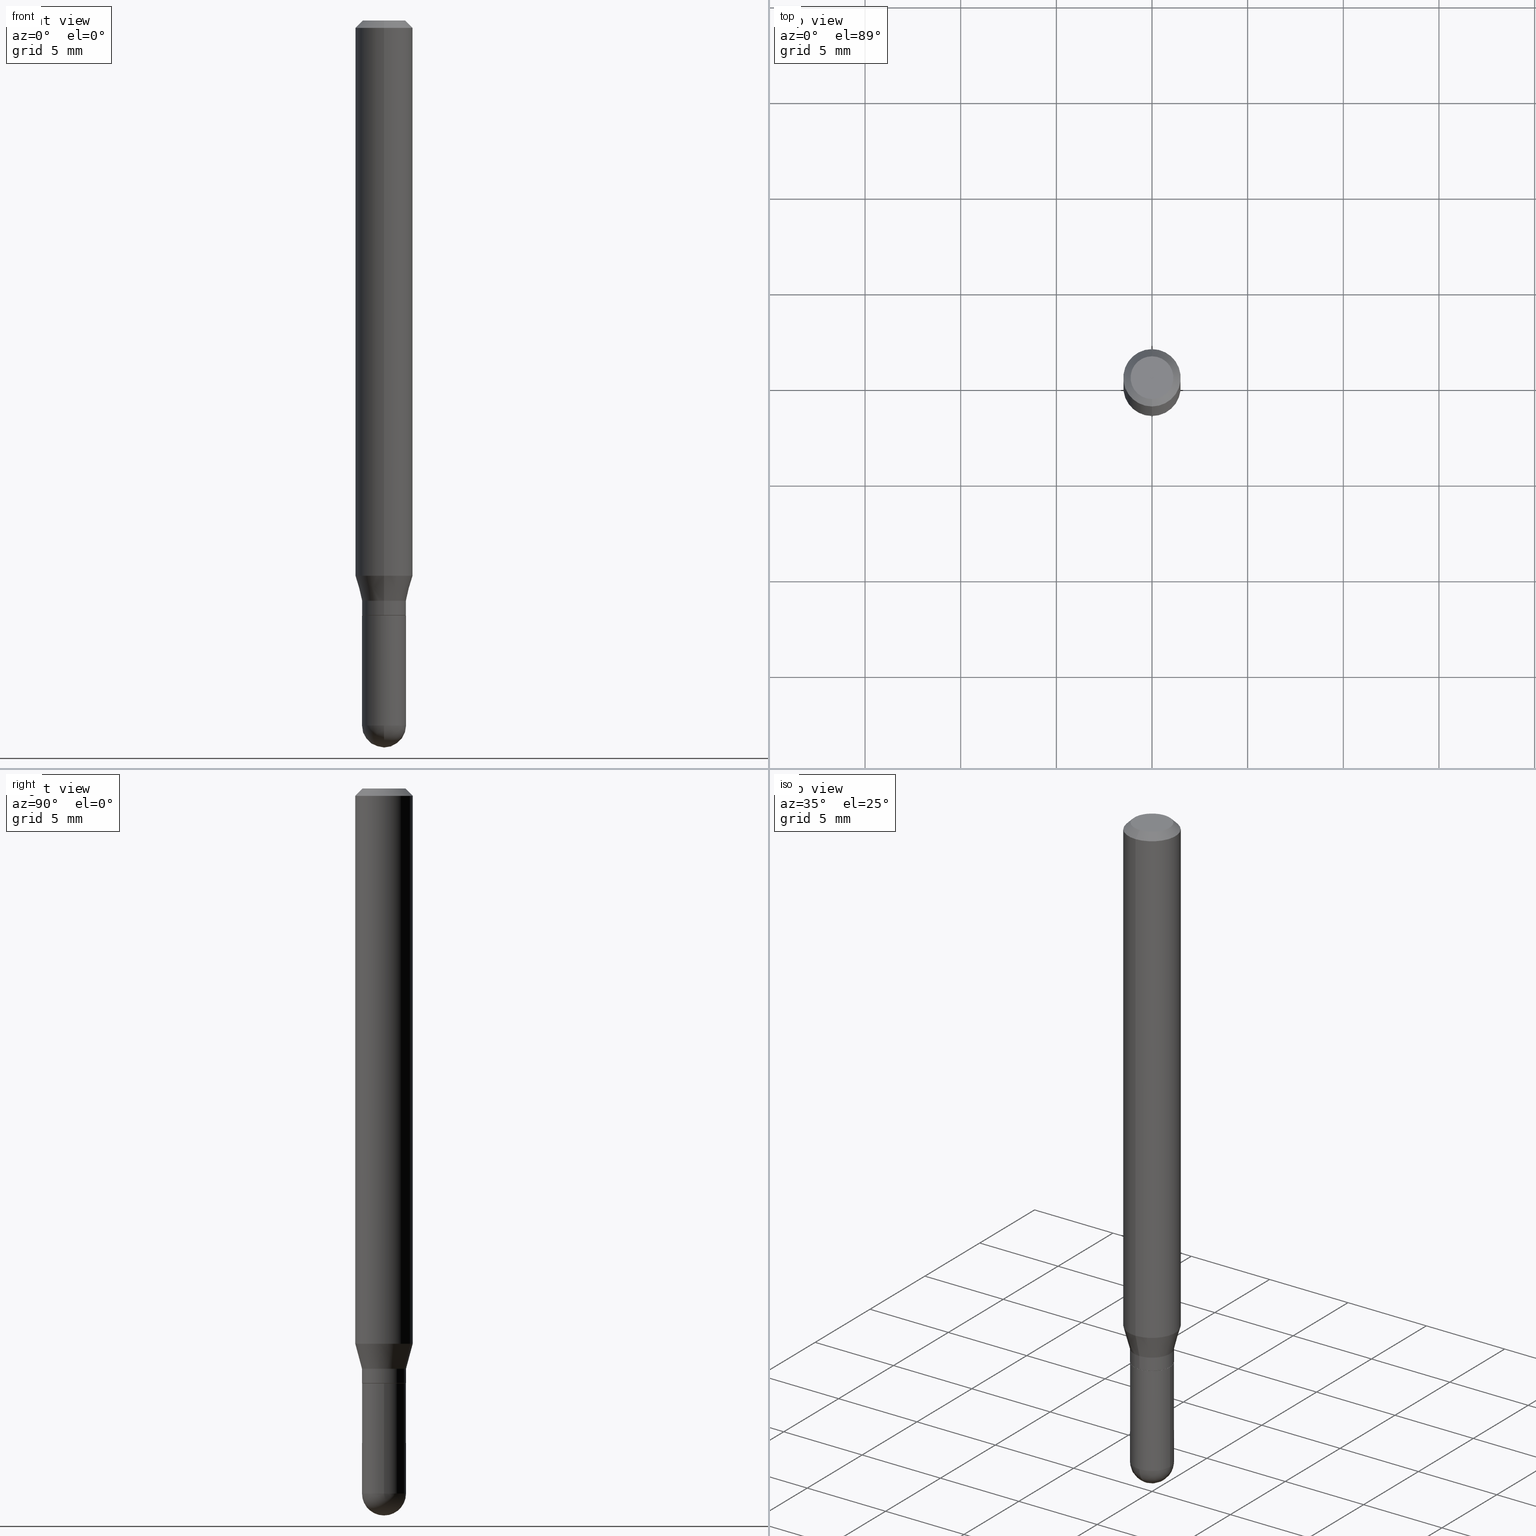
[diagram: canonical four-view strip — front | top / right | iso, engineering-drawing reading convention]
A machine part, canonical four-view strip (front | top / right | iso — engineering-drawing reading convention). The complete STEP part file that produces these views, byte-faithful:
ISO-10303-21;
HEADER;
FILE_DESCRIPTION (( 'STEP AP203' ),
    '1' );
FILE_NAME ('02972.STEP',
    '2024-03-07T22:12:46',
    ( '' ),
    ( '' ),
    'SwSTEP 2.0',
    'SolidWorks 2023',
    '' );
FILE_SCHEMA (( 'CONFIG_CONTROL_DESIGN' ));
ENDSEC;

DATA;
#1 = EDGE_CURVE ( 'NONE', #253, #218, #190, .T. ) ;
#2 = DIRECTION ( 'NONE',  ( -2.445418673968279448E-29, 3.491553131031033645E-15, 1.000000000000000000 ) ) ;
#3 = CIRCLE ( 'NONE', #499, 0.04529999999999997223 ) ;
#4 = DIRECTION ( 'NONE',  ( 1.000000000000000000, -7.105427357601001070E-15, 4.926315508542082329E-29 ) ) ;
#5 = LINE ( 'NONE', #264, #470 ) ;
#6 = EDGE_CURVE ( 'NONE', #132, #503, #116, .T. ) ;
#7 = DIRECTION ( 'NONE',  ( 1.000000000000000000, -6.982962677686271444E-15, 0.000000000000000000 ) ) ;
#8 = CARTESIAN_POINT ( 'NONE',  ( 2.992947915069776722E-29, -4.273311877068882063E-15, -1.223899999999999988 ) ) ;
#9 = FACE_OUTER_BOUND ( 'NONE', #507, .T. ) ;
#10 = DIMENSIONAL_EXPONENTS ( 1.000000000000000000, 0.000000000000000000, 0.000000000000000000, 0.000000000000000000, 0.000000000000000000, 0.000000000000000000, 0.000000000000000000 ) ;
#11 = DIRECTION ( 'NONE',  ( -2.445468806185136597E-29, 3.491481338843145583E-15, 1.000000000000000000 ) ) ;
#12 = DIRECTION ( 'NONE',  ( -2.445468806185136597E-29, 3.491481338843145583E-15, 1.000000000000000000 ) ) ;
#13 = AXIS2_PLACEMENT_3D ( 'NONE', #497, #60, #392 ) ;
#14 = CARTESIAN_POINT ( 'NONE',  ( 3.668128010952441278E-31, -5.237329696546582811E-17, -0.01500000000000009139 ) ) ;
#15 = CARTESIAN_POINT ( 'NONE',  ( -4.123439461173736383E-16, -0.05905000000000005383, -0.01499999999999988495 ) ) ;
#16 = CARTESIAN_POINT ( 'NONE',  ( 0.000000000000000000, 0.000000000000000000, 0.000000000000000000 ) ) ;
#17 = EDGE_CURVE ( 'NONE', #218, #503, #509, .T. ) ;
#18 = PERSON_AND_ORGANIZATION ( #61, #500 ) ;
#19 = ORIENTED_EDGE ( 'NONE', *, *, #141, .F. ) ;
#20 = CARTESIAN_POINT ( 'NONE',  ( 3.707256723828610594E-16, 0.04529999999999589216, -1.194100000000000161 ) ) ;
#21 = AXIS2_PLACEMENT_3D ( 'NONE', #486, #456, #247 ) ;
#22 = PERSON_AND_ORGANIZATION_ROLE ( 'classification_officer' ) ;
#23 = APPLICATION_PROTOCOL_DEFINITION ( 'international standard', 'config_control_design', 1994, #152 ) ;
#24 = CC_DESIGN_PERSON_AND_ORGANIZATION_ASSIGNMENT ( #354, #211, ( #467 ) ) ;
#25 = VERTEX_POINT ( 'NONE', #118 ) ;
#26 = DIRECTION ( 'NONE',  ( 1.839019923739603865E-15, 0.2588190451025254579, 0.9659258262890669799 ) ) ;
#27 = DIRECTION ( 'NONE',  ( -6.982962677686265133E-15, -1.000000000000000000, 3.491553131031033645E-15 ) ) ;
#28 = VECTOR ( 'NONE', #162, 39.37007874015748143 ) ;
#29 = EDGE_CURVE ( 'NONE', #336, #231, #444, .T. ) ;
#30 = CONICAL_SURFACE ( 'NONE', #419, 0.05904999999999999832, 0.7853981633974483900 ) ;
#31 = LINE ( 'NONE', #401, #202 ) ;
#32 = ORIENTED_EDGE ( 'NONE', *, *, #510, .F. ) ;
#33 = ORIENTED_EDGE ( 'NONE', *, *, #348, .F. ) ;
#34 = ORIENTED_EDGE ( 'NONE', *, *, #487, .T. ) ;
#35 = PLANE ( 'NONE',  #269 ) ;
#36 = ORIENTED_EDGE ( 'NONE', *, *, #510, .T. ) ;
#37 = ORIENTED_EDGE ( 'NONE', *, *, #6, .T. ) ;
#38 = CIRCLE ( 'NONE', #81, 0.04479999999999999954 ) ;
#39 = CARTESIAN_POINT ( 'NONE',  ( 0.000000000000000000, 0.000000000000000000, 0.000000000000000000 ) ) ;
#40 = ADVANCED_FACE ( 'NONE', ( #203 ), #327, .T. ) ;
#41 = ORIENTED_EDGE ( 'NONE', *, *, #55, .T. ) ;
#42 = ORIENTED_EDGE ( 'NONE', *, *, #386, .F. ) ;
#43 = CARTESIAN_POINT ( 'NONE',  ( 2.994170624406760969E-29, -4.275057653634397483E-15, -1.224399999999999933 ) ) ;
#44 = DIRECTION ( 'NONE',  ( -2.445418673968279448E-29, 3.491553131031033645E-15, 1.000000000000000000 ) ) ;
#45 = ORIENTED_EDGE ( 'NONE', *, *, #458, .F. ) ;
#46 = EDGE_LOOP ( 'NONE', ( #76, #244, #452, #228 ) ) ;
#47 = CARTESIAN_POINT ( 'NONE',  ( -3.163282092991584508E-16, -0.04530000000000435761, -1.223899999999999766 ) ) ;
#48 = EDGE_CURVE ( 'NONE', #218, #253, #294, .T. ) ;
#49 = ORIENTED_EDGE ( 'NONE', *, *, #316, .T. ) ;
#50 = CIRCLE ( 'NONE', #281, 0.05904999999999999832 ) ;
#51 = PRODUCT_RELATED_PRODUCT_CATEGORY ( 'detail', '', ( #355 ) ) ;
#52 = ORIENTED_EDGE ( 'NONE', *, *, #48, .T. ) ;
#53 = LINE ( 'NONE', #85, #379 ) ;
#54 = CARTESIAN_POINT ( 'NONE',  ( -3.163282092991523864E-16, -0.04530000000000506538, -1.450799999999999423 ) ) ;
#55 = EDGE_CURVE ( 'NONE', #231, #437, #241, .T. ) ;
#56 = DATE_TIME_ROLE ( 'creation_date' ) ;
#57 = CONICAL_SURFACE ( 'NONE', #359, 0.04530000000000006244, 0.2617993877991508511 ) ;
#58 = EDGE_LOOP ( 'NONE', ( #315, #34, #185, #283 ) ) ;
#59 = AXIS2_PLACEMENT_3D ( 'NONE', #8, #172, #133 ) ;
#60 = DIRECTION ( 'NONE',  ( -2.445418673968279448E-29, 3.491553131031033645E-15, 1.000000000000000000 ) ) ;
#61 = PERSON ( 'UNSPECIFIED', 'UNSPECIFIED', 'UNSPECIFIED', ('UNSPECIFIED'), ('UNSPECIFIED'), ('UNSPECIFIED') ) ;
#62 = PRODUCT_DEFINITION_SHAPE ( 'NONE', 'NONE',  #467 ) ;
#63 = ORIENTED_EDGE ( 'NONE', *, *, #316, .F. ) ;
#64 = EDGE_CURVE ( 'NONE', #231, #218, #382, .T. ) ;
#65 = AXIS2_PLACEMENT_3D ( 'NONE', #384, #12, #7 ) ;
#66 = CC_DESIGN_PERSON_AND_ORGANIZATION_ASSIGNMENT ( #18, #502, ( #330 ) ) ;
#67 = AXIS2_PLACEMENT_3D ( 'NONE', #14, #426, #233 ) ;
#68 = CC_DESIGN_SECURITY_CLASSIFICATION ( #237, ( #330 ) ) ;
#69 = EDGE_LOOP ( 'NONE', ( #97, #262, #436, #19, #307 ) ) ;
#70 = CARTESIAN_POINT ( 'NONE',  ( 3.218758592993607350E-16, 0.04529999999999492072, -1.450800000000000090 ) ) ;
#71 = PERSON_AND_ORGANIZATION_ROLE ( 'design_owner' ) ;
#72 = DIRECTION ( 'NONE',  ( -2.445418673968279448E-29, 3.491553131031033645E-15, 1.000000000000000000 ) ) ;
#73 =( NAMED_UNIT ( * ) PLANE_ANGLE_UNIT ( ) SI_UNIT ( $, .RADIAN. ) );
#74 = CARTESIAN_POINT ( 'NONE',  ( 0.000000000000000000, 0.000000000000000000, 0.000000000000000000 ) ) ;
#75 = LOCAL_TIME ( 17, 12, 46.00000000000000000, #404 ) ;
#76 = ORIENTED_EDGE ( 'NONE', *, *, #207, .F. ) ;
#77 = APPROVAL_ROLE ( '' ) ;
#78 = LINE ( 'NONE', #399, #242 ) ;
#79 = DIRECTION ( 'NONE',  ( -1.000000000000000000, 6.982962677686265922E-15, -4.883557194083112340E-29 ) ) ;
#80 = CARTESIAN_POINT ( 'NONE',  ( 2.994170624406760969E-29, -4.275057653634397483E-15, -1.224399999999999933 ) ) ;
#81 = AXIS2_PLACEMENT_3D ( 'NONE', #292, #2, #337 ) ;
#82 = CALENDAR_DATE ( 2024, 7, 3 ) ;
#83 = FACE_OUTER_BOUND ( 'NONE', #365, .T. ) ;
#84 = CARTESIAN_POINT ( 'NONE',  ( 3.599717260347271507E-16, 0.04404999999999999888, -2.454645658922200893E-16 ) ) ;
#85 = CARTESIAN_POINT ( 'NONE',  ( 3.183231456205547581E-16, 0.04479999999999572519, -1.224400000000000155 ) ) ;
#86 = DIRECTION ( 'NONE',  ( 1.000000000000000000, 0.000000000000000000, 0.000000000000000000 ) ) ;
#87 = EDGE_CURVE ( 'NONE', #417, #389, #123, .T. ) ;
#88 = CARTESIAN_POINT ( 'NONE',  ( 0.04530000000000000693, -4.986533648135779220E-15, -1.450799999999999645 ) ) ;
#89 = DATE_AND_TIME ( #442, #75 ) ;
#90 = CC_DESIGN_DATE_AND_TIME_ASSIGNMENT ( #102, #338, ( #237 ) ) ;
#91 = COORDINATED_UNIVERSAL_TIME_OFFSET ( 5, 0, .BEHIND. ) ;
#92 = AXIS2_PLACEMENT_3D ( 'NONE', #216, #219, #387 ) ;
#93 = EDGE_LOOP ( 'NONE', ( #194, #364, #254, #473 ) ) ;
#94 = CIRCLE ( 'NONE', #312, 0.04530000000000006244 ) ;
#95 =( LENGTH_UNIT ( ) NAMED_UNIT ( * ) SI_UNIT ( $, .METRE. ) );
#96 = ORIENTED_EDGE ( 'NONE', *, *, #288, .F. ) ;
#97 = ORIENTED_EDGE ( 'NONE', *, *, #448, .T. ) ;
#98 = CARTESIAN_POINT ( 'NONE',  ( 2.994170624406760969E-29, -4.275057653634397483E-15, -1.224399999999999933 ) ) ;
#99 = EDGE_CURVE ( 'NONE', #376, #459, #154, .T. ) ;
#100 = ORIENTED_EDGE ( 'NONE', *, *, #174, .T. ) ;
#101 = AXIS2_PLACEMENT_3D ( 'NONE', #201, #224, #293 ) ;
#102 = DATE_AND_TIME ( #319, #360 ) ;
#103 = AXIS2_PLACEMENT_3D ( 'NONE', #335, #511, #416 ) ;
#104 = PERSON_AND_ORGANIZATION_ROLE ( 'design_supplier' ) ;
#105 = ORIENTED_EDGE ( 'NONE', *, *, #181, .T. ) ;
#106 = CARTESIAN_POINT ( 'NONE',  ( 2.241511117468325318E-45, -3.200415226950590943E-31, -9.166165047030312473E-17 ) ) ;
#107 = APPLICATION_CONTEXT ( 'configuration controlled 3d designs of mechanical parts and assemblies' ) ;
#108 = ADVANCED_FACE ( 'NONE', ( #266 ), #111, .T. ) ;
#109 = SECURITY_CLASSIFICATION_LEVEL ( 'unclassified' ) ;
#110 = ORIENTED_EDGE ( 'NONE', *, *, #348, .T. ) ;
#111 = CONICAL_SURFACE ( 'NONE', #410, 0.05904999999999999832, 0.7853981633974483900 ) ;
#112 = CIRCLE ( 'NONE', #134, 0.04530000000000000693 ) ;
#113 = ADVANCED_FACE ( 'NONE', ( #83 ), #57, .T. ) ;
#114 = DIRECTION ( 'NONE',  ( 2.438088387897960049E-29, -3.491481338843145188E-15, -1.000000000000000000 ) ) ;
#115 = AXIS2_PLACEMENT_3D ( 'NONE', #453, #169, #256 ) ;
#116 = LINE ( 'NONE', #245, #259 ) ;
#117 = DIRECTION ( 'NONE',  ( -2.445468806185136597E-29, 3.491481338843145583E-15, 1.000000000000000000 ) ) ;
#118 = CARTESIAN_POINT ( 'NONE',  ( -3.128367279603147534E-16, -0.04480000000000427390, -1.224399999999999711 ) ) ;
#119 = DIRECTION ( 'NONE',  ( 2.445418673968279168E-29, -3.491553131031033645E-15, -1.000000000000000000 ) ) ;
#120 = DIRECTION ( 'NONE',  ( -2.445468806185136597E-29, 3.491481338843145583E-15, 1.000000000000000000 ) ) ;
#121 = EDGE_LOOP ( 'NONE', ( #408, #414, #32, #477 ) ) ;
#122 = CARTESIAN_POINT ( 'NONE',  ( -0.04530000000000000693, 3.218758592993254334E-16, -2.228277595885472564E-30 ) ) ;
#123 = CIRCLE ( 'NONE', #65, 0.04529999999999999999 ) ;
#124 = EDGE_CURVE ( 'NONE', #279, #25, #248, .T. ) ;
#125 = LOCAL_TIME ( 17, 12, 46.00000000000000000, #465 ) ;
#126 = CALENDAR_DATE ( 2024, 7, 3 ) ;
#127 = DIRECTION ( 'NONE',  ( -2.445468806185136597E-29, 3.491481338843145583E-15, 1.000000000000000000 ) ) ;
#128 = CARTESIAN_POINT ( 'NONE',  ( 2.920074438585522124E-29, -4.169263593764157462E-15, -1.194099999999999939 ) ) ;
#129 = ORIENTED_EDGE ( 'NONE', *, *, #323, .F. ) ;
#130 = DIRECTION ( 'NONE',  ( -6.982962677686265133E-15, -1.000000000000000000, 3.491553131031033645E-15 ) ) ;
#131 = DIRECTION ( 'NONE',  ( -2.445418673968279448E-29, 3.491553131031033645E-15, 1.000000000000000000 ) ) ;
#132 = VERTEX_POINT ( 'NONE', #481 ) ;
#133 = DIRECTION ( 'NONE',  ( -6.982962677686265133E-15, -1.000000000000000000, 3.015284761218829434E-15 ) ) ;
#134 = AXIS2_PLACEMENT_3D ( 'NONE', #489, #285, #257 ) ;
#135 = FACE_OUTER_BOUND ( 'NONE', #46, .T. ) ;
#136 = DIRECTION ( 'NONE',  ( -4.937700262164674260E-15, -0.7071067811865632269, 0.7071067811865319186 ) ) ;
#137 = DIRECTION ( 'NONE',  ( -2.445468806185136597E-29, 3.491481338843145583E-15, 1.000000000000000000 ) ) ;
#138 = ORIENTED_EDGE ( 'NONE', *, *, #448, .F. ) ;
#139 = ORIENTED_EDGE ( 'NONE', *, *, #288, .T. ) ;
#140 = PERSON_AND_ORGANIZATION ( #61, #500 ) ;
#141 = EDGE_CURVE ( 'NONE', #146, #389, #167, .T. ) ;
#142 = AXIS2_PLACEMENT_3D ( 'NONE', #321, #119, #278 ) ;
#143 = ORIENTED_EDGE ( 'NONE', *, *, #174, .F. ) ;
#144 = EDGE_CURVE ( 'NONE', #146, #459, #275, .T. ) ;
#145 = APPROVAL_DATE_TIME ( #89, #340 ) ;
#146 = VERTEX_POINT ( 'NONE', #88 ) ;
#147 = PLANE ( 'NONE',  #142 ) ;
#148 = AXIS2_PLACEMENT_3D ( 'NONE', #39, #484, #130 ) ;
#149 = DIRECTION ( 'NONE',  ( 2.445418673968279448E-29, -3.491553131031033645E-15, -1.000000000000000000 ) ) ;
#150 = PERSON_AND_ORGANIZATION ( #61, #500 ) ;
#151 = ADVANCED_FACE ( 'NONE', ( #441 ), #406, .T. ) ;
#152 = APPLICATION_CONTEXT ( 'configuration controlled 3d designs of mechanical parts and assemblies' ) ;
#153 = CYLINDRICAL_SURFACE ( 'NONE', #434, 0.04530000000000006244 ) ;
#154 = CIRCLE ( 'NONE', #455, 0.04529999999999997223 ) ;
#155 = VECTOR ( 'NONE', #295, 39.37007874015748143 ) ;
#156 = EDGE_LOOP ( 'NONE', ( #52, #49, #427, #461 ) ) ;
#157 = CARTESIAN_POINT ( 'NONE',  ( 4.195754854663672017E-16, 0.05904999999999994975, -0.01500000000000029955 ) ) ;
#158 = CARTESIAN_POINT ( 'NONE',  ( 3.200995024599552074E-16, 0.04479999999999572519, -1.224400000000000155 ) ) ;
#159 = CARTESIAN_POINT ( 'NONE',  ( 3.544012240723413228E-29, -5.070988776393773069E-15, -1.450800000000000090 ) ) ;
#160 = DIRECTION ( 'NONE',  ( -6.982962677686266711E-15, -1.000000000000000000, 0.000000000000000000 ) ) ;
#161 = SPHERICAL_SURFACE ( 'NONE', #423, 0.04529999999999997223 ) ;
#162 = DIRECTION ( 'NONE',  ( -2.445468806185136877E-29, 3.491481338843145188E-15, 1.000000000000000000 ) ) ;
#163 = CYLINDRICAL_SURFACE ( 'NONE', #411, 0.04530000000000000693 ) ;
#164 = AXIS2_PLACEMENT_3D ( 'NONE', #402, #117, #366 ) ;
#165 = ADVANCED_FACE ( 'NONE', ( #239 ), #153, .T. ) ;
#166 = CC_DESIGN_APPROVAL ( #188, ( #330 ) ) ;
#167 = LINE ( 'NONE', #339, #28 ) ;
#168 = CYLINDRICAL_SURFACE ( 'NONE', #505, 0.05904999999999999832 ) ;
#169 = DIRECTION ( 'NONE',  ( -2.445418673968279448E-29, 3.491553131031033645E-15, 1.000000000000000000 ) ) ;
#170 = APPROVAL_ROLE ( '' ) ;
#171 = DIRECTION ( 'NONE',  ( 6.982962677686265922E-15, 1.000000000000000000, -3.505890868245046092E-15 ) ) ;
#172 = DIRECTION ( 'NONE',  ( -2.445418673968279448E-29, 3.491553131031033645E-15, 1.000000000000000000 ) ) ;
#173 = DIRECTION ( 'NONE',  ( -2.445418673968279448E-29, 3.491553131031033645E-15, 1.000000000000000000 ) ) ;
#174 = EDGE_CURVE ( 'NONE', #189, #313, #236, .T. ) ;
#175 = CARTESIAN_POINT ( 'NONE',  ( 4.195754854663390985E-16, 0.05904999999999999832, -2.061762123873825338E-16 ) ) ;
#176 = AXIS2_PLACEMENT_3D ( 'NONE', #98, #495, #220 ) ;
#177 = AXIS2_PLACEMENT_3D ( 'NONE', #16, #180, #86 ) ;
#178 = PERSON_AND_ORGANIZATION ( #61, #500 ) ;
#179 = DIRECTION ( 'NONE',  ( 2.445418673968279448E-29, -3.491553131031033645E-15, -1.000000000000000000 ) ) ;
#180 = DIRECTION ( 'NONE',  ( 0.000000000000000000, 0.000000000000000000, 1.000000000000000000 ) ) ;
#181 = EDGE_CURVE ( 'NONE', #394, #325, #78, .T. ) ;
#182 = CC_DESIGN_PERSON_AND_ORGANIZATION_ASSIGNMENT ( #466, #104, ( #330 ) ) ;
#183 = CLOSED_SHELL ( 'NONE', ( #344, #438, #210, #324, #302 ) ) ;
#184 = VECTOR ( 'NONE', #347, 39.37007874015748143 ) ;
#185 = ORIENTED_EDGE ( 'NONE', *, *, #29, .T. ) ;
#186 = ORIENTED_EDGE ( 'NONE', *, *, #207, .T. ) ;
#187 = APPROVAL_DATE_TIME ( #234, #378 ) ;
#188 = APPROVAL ( #494, 'UNSPECIFIED' ) ;
#189 = VERTEX_POINT ( 'NONE', #246 ) ;
#190 = CIRCLE ( 'NONE', #428, 0.05904999999999999832 ) ;
#191 = AXIS2_PLACEMENT_3D ( 'NONE', #420, #127, #450 ) ;
#192 = FACE_OUTER_BOUND ( 'NONE', #311, .T. ) ;
#193 = AXIS2_PLACEMENT_3D ( 'NONE', #482, #249, #413 ) ;
#194 = ORIENTED_EDGE ( 'NONE', *, *, #260, .F. ) ;
#195 = DIRECTION ( 'NONE',  ( -6.982962677686265922E-15, -1.000000000000000000, 3.491553131031033645E-15 ) ) ;
#196 = ORIENTED_EDGE ( 'NONE', *, *, #124, .F. ) ;
#197 = ADVANCED_BREP_SHAPE_REPRESENTATION ( '02972', ( #508, #342, #177 ), #435 ) ;
#198 = CARTESIAN_POINT ( 'NONE',  ( 0.000000000000000000, 0.000000000000000000, 0.000000000000000000 ) ) ;
#199 = DIRECTION ( 'NONE',  ( -2.445418673968279448E-29, 3.491553131031033645E-15, 1.000000000000000000 ) ) ;
#200 = CARTESIAN_POINT ( 'NONE',  ( 3.163282092992178619E-16, 0.04529999999999572563, -1.224400000000000155 ) ) ;
#201 = CARTESIAN_POINT ( 'NONE',  ( 2.794586070951398077E-29, -3.990092105632066649E-15, -1.142784301395928459 ) ) ;
#202 = VECTOR ( 'NONE', #26, 39.37007874015748854 ) ;
#203 = FACE_OUTER_BOUND ( 'NONE', #121, .T. ) ;
#204 = APPROVAL_PERSON_ORGANIZATION ( #393, #340, #77 ) ;
#205 = CYLINDRICAL_SURFACE ( 'NONE', #148, 0.04530000000000006244 ) ;
#206 = CARTESIAN_POINT ( 'NONE',  ( 2.994170624406760969E-29, -4.275057653634397483E-15, -1.224399999999999933 ) ) ;
#207 = EDGE_CURVE ( 'NONE', #437, #253, #31, .T. ) ;
#208 = CARTESIAN_POINT ( 'NONE',  ( 3.652855025998608587E-29, -5.231926706043436969E-15, -1.496099999999999985 ) ) ;
#209 = ORIENTED_EDGE ( 'NONE', *, *, #6, .F. ) ;
#210 = ADVANCED_FACE ( 'NONE', ( #357 ), #35, .F. ) ;
#211 = PERSON_AND_ORGANIZATION_ROLE ( 'creator' ) ;
#212 = CARTESIAN_POINT ( 'NONE',  ( -3.163282092991590424E-16, -0.04530000000000422578, -1.194099999999999939 ) ) ;
#213 = ADVANCED_FACE ( 'NONE', ( #332 ), #147, .F. ) ;
#214 = DIRECTION ( 'NONE',  ( -6.982962677686265133E-15, -1.000000000000000000, 3.015284761218829434E-15 ) ) ;
#215 = DATE_AND_TIME ( #126, #277 ) ;
#216 = CARTESIAN_POINT ( 'NONE',  ( 2.920074438585522124E-29, -4.169263593764157462E-15, -1.194099999999999939 ) ) ;
#217 = CIRCLE ( 'NONE', #445, 0.04529999999999999999 ) ;
#218 = VERTEX_POINT ( 'NONE', #240 ) ;
#219 = DIRECTION ( 'NONE',  ( -2.445418673968279448E-29, 3.491553131031033645E-15, 1.000000000000000000 ) ) ;
#220 = DIRECTION ( 'NONE',  ( -6.982962677686265922E-15, -1.000000000000000000, 3.491553131031033645E-15 ) ) ;
#221 = ORIENTED_EDGE ( 'NONE', *, *, #429, .T. ) ;
#222 = ADVANCED_FACE ( 'NONE', ( #192 ), #30, .T. ) ;
#223 = DIRECTION ( 'NONE',  ( 5.024295867788190974E-15, 0.7071067811865681119, 0.7071067811865270336 ) ) ;
#224 = DIRECTION ( 'NONE',  ( -2.445418673968279448E-29, 3.491553131031033645E-15, 1.000000000000000000 ) ) ;
#225 = CC_DESIGN_PERSON_AND_ORGANIZATION_ASSIGNMENT ( #140, #71, ( #355 ) ) ;
#226 = CARTESIAN_POINT ( 'NONE',  ( 2.994232006293080857E-29, -4.274969751279546755E-15, -1.224399999999999933 ) ) ;
#227 = SHAPE_DEFINITION_REPRESENTATION ( #62, #197 ) ;
#228 = ORIENTED_EDGE ( 'NONE', *, *, #1, .F. ) ;
#229 = LENGTH_MEASURE_WITH_UNIT ( LENGTH_MEASURE( 0.02539999999999999897 ), #95 );
#230 = CIRCLE ( 'NONE', #59, 0.04530000000000006244 ) ;
#231 = VERTEX_POINT ( 'NONE', #377 ) ;
#232 = ADVANCED_FACE ( 'NONE', ( #135 ), #390, .T. ) ;
#233 = DIRECTION ( 'NONE',  ( -6.982962677686265922E-15, -1.000000000000000000, 3.505890868245046092E-15 ) ) ;
#234 = DATE_AND_TIME ( #314, #125 ) ;
#235 = DIRECTION ( 'NONE',  ( -6.982962677686265922E-15, -1.000000000000000000, 3.505890868245046092E-15 ) ) ;
#236 = CIRCLE ( 'NONE', #164, 0.04530000000000000693 ) ;
#237 = SECURITY_CLASSIFICATION ( '', '', #109 ) ;
#238 = COORDINATED_UNIVERSAL_TIME_OFFSET ( 5, 0, .BEHIND. ) ;
#239 = FACE_OUTER_BOUND ( 'NONE', #272, .T. ) ;
#240 = CARTESIAN_POINT ( 'NONE',  ( -4.123439461173460774E-16, -0.05905000000000398819, -1.142784301395928237 ) ) ;
#241 = CIRCLE ( 'NONE', #92, 0.04530000000000006244 ) ;
#242 = VECTOR ( 'NONE', #471, 39.37007874015748143 ) ;
#243 = DIRECTION ( 'NONE',  ( -2.445418673968279448E-29, 3.491553131031033645E-15, 1.000000000000000000 ) ) ;
#244 = ORIENTED_EDGE ( 'NONE', *, *, #400, .T. ) ;
#245 = CARTESIAN_POINT ( 'NONE',  ( -4.051124067684085231E-16, -0.05905000000000005383, -0.01499999999999988495 ) ) ;
#246 = CARTESIAN_POINT ( 'NONE',  ( -0.04530000000000000693, -4.348329579537264718E-15, -1.450799999999999645 ) ) ;
#247 = DIRECTION ( 'NONE',  ( -6.982962677686265133E-15, -1.000000000000000000, 3.015284761218829434E-15 ) ) ;
#248 = CIRCLE ( 'NONE', #268, 0.04479999999999999954 ) ;
#249 = DIRECTION ( 'NONE',  ( -2.445468806185136597E-29, 3.491481338843145583E-15, 1.000000000000000000 ) ) ;
#250 = CIRCLE ( 'NONE', #13, 0.04530000000000006244 ) ;
#251 = ORIENTED_EDGE ( 'NONE', *, *, #405, .T. ) ;
#252 = CARTESIAN_POINT ( 'NONE',  ( 2.920074438585522124E-29, -4.169263593764157462E-15, -1.194099999999999939 ) ) ;
#253 = VERTEX_POINT ( 'NONE', #370 ) ;
#254 = ORIENTED_EDGE ( 'NONE', *, *, #472, .T. ) ;
#255 = MECHANICAL_CONTEXT ( 'NONE', #107, 'mechanical' ) ;
#256 = DIRECTION ( 'NONE',  ( -6.982962677686265133E-15, -1.000000000000000000, 3.491553131031032856E-15 ) ) ;
#257 = DIRECTION ( 'NONE',  ( 1.000000000000000000, -6.982962677686269866E-15, 0.000000000000000000 ) ) ;
#258 = APPROVAL_DATE_TIME ( #215, #188 ) ;
#259 = VECTOR ( 'NONE', #367, 39.37007874015748143 ) ;
#260 = EDGE_CURVE ( 'NONE', #279, #271, #53, .T. ) ;
#261 = AXIS2_PLACEMENT_3D ( 'NONE', #198, #72, #195 ) ;
#262 = ORIENTED_EDGE ( 'NONE', *, *, #386, .T. ) ;
#263 = DIRECTION ( 'NONE',  ( -2.445418673968279448E-29, 3.491553131031033645E-15, 1.000000000000000000 ) ) ;
#264 = CARTESIAN_POINT ( 'NONE',  ( -3.128367279603147534E-16, -0.04480000000000427390, -1.224399999999999711 ) ) ;
#265 = CARTESIAN_POINT ( 'NONE',  ( 0.000000000000000000, 0.000000000000000000, 0.000000000000000000 ) ) ;
#266 = FACE_OUTER_BOUND ( 'NONE', #415, .T. ) ;
#267 = APPLICATION_PROTOCOL_DEFINITION ( 'international standard', 'config_control_design', 1994, #107 ) ;
#268 = AXIS2_PLACEMENT_3D ( 'NONE', #43, #263, #374 ) ;
#269 = AXIS2_PLACEMENT_3D ( 'NONE', #200, #114, #282 ) ;
#270 = ADVANCED_FACE ( 'NONE', ( #409 ), #205, .T. ) ;
#271 = VERTEX_POINT ( 'NONE', #301 ) ;
#272 = EDGE_LOOP ( 'NONE', ( #36, #485, #273, #425 ) ) ;
#273 = ORIENTED_EDGE ( 'NONE', *, *, #55, .F. ) ;
#274 = VECTOR ( 'NONE', #490, 39.37007874015748854 ) ;
#275 = CIRCLE ( 'NONE', #191, 0.04530000000000000693 ) ;
#276 = ORIENTED_EDGE ( 'NONE', *, *, #1, .T. ) ;
#277 = LOCAL_TIME ( 17, 12, 46.00000000000000000, #480 ) ;
#278 = DIRECTION ( 'NONE',  ( 6.982962677686265922E-15, 1.000000000000000000, -3.491553131031033645E-15 ) ) ;
#279 = VERTEX_POINT ( 'NONE', #158 ) ;
#280 = CC_DESIGN_DATE_AND_TIME_ASSIGNMENT ( #449, #56, ( #467 ) ) ;
#281 = AXIS2_PLACEMENT_3D ( 'NONE', #451, #173, #235 ) ;
#282 = DIRECTION ( 'NONE',  ( -1.000000000000000000, 6.982962677686265922E-15, -4.876176775795935793E-29 ) ) ;
#283 = ORIENTED_EDGE ( 'NONE', *, *, #400, .F. ) ;
#284 = PLANE ( 'NONE',  #176 ) ;
#285 = DIRECTION ( 'NONE',  ( -2.445468806185136597E-29, 3.491481338843145583E-15, 1.000000000000000000 ) ) ;
#286 = CARTESIAN_POINT ( 'NONE',  ( 3.544012240723413228E-29, -5.070988776393773069E-15, -1.450800000000000090 ) ) ;
#287 = CARTESIAN_POINT ( 'NONE',  ( -3.163282092991882303E-16, -0.04530000000000006244, 1.581673568357060465E-16 ) ) ;
#288 = EDGE_CURVE ( 'NONE', #394, #132, #491, .T. ) ;
#289 = DIRECTION ( 'NONE',  ( -2.445418673968279448E-29, 3.491553131031033645E-15, 1.000000000000000000 ) ) ;
#290 = ORIENTED_EDGE ( 'NONE', *, *, #64, .F. ) ;
#291 = EDGE_CURVE ( 'NONE', #271, #437, #418, .T. ) ;
#292 = CARTESIAN_POINT ( 'NONE',  ( 2.994170624406760969E-29, -4.275057653634397483E-15, -1.224399999999999933 ) ) ;
#293 = DIRECTION ( 'NONE',  ( -6.982962677686265922E-15, -1.000000000000000000, 4.626330217890369336E-15 ) ) ;
#294 = CIRCLE ( 'NONE', #101, 0.05904999999999999832 ) ;
#295 = DIRECTION ( 'NONE',  ( -2.445468806185136877E-29, 3.491481338843145188E-15, 1.000000000000000000 ) ) ;
#296 = AXIS2_PLACEMENT_3D ( 'NONE', #206, #439, #334 ) ;
#297 = DIRECTION ( 'NONE',  ( -6.982962677686266711E-15, -1.000000000000000000, 3.048937492928865273E-15 ) ) ;
#298 = ORIENTED_EDGE ( 'NONE', *, *, #141, .T. ) ;
#299 = CARTESIAN_POINT ( 'NONE',  ( 3.544012240723413228E-29, -5.070988776393773069E-15, -1.450800000000000090 ) ) ;
#300 = SPHERICAL_SURFACE ( 'NONE', #103, 0.04529999999999997223 ) ;
#301 = CARTESIAN_POINT ( 'NONE',  ( 3.218758592993555581E-16, 0.04529999999999576726, -1.223899999999999988 ) ) ;
#302 = ADVANCED_FACE ( 'NONE', ( #460 ), #493, .T. ) ;
#303 = EDGE_LOOP ( 'NONE', ( #45, #196 ) ) ;
#304 = VECTOR ( 'NONE', #440, 39.37007874015748143 ) ;
#305 = CIRCLE ( 'NONE', #193, 0.04530000000000000693 ) ;
#306 = ORIENTED_EDGE ( 'NONE', *, *, #99, .T. ) ;
#307 = ORIENTED_EDGE ( 'NONE', *, *, #144, .T. ) ;
#308 = DIRECTION ( 'NONE',  ( 1.000000000000000000, -6.982962677686271444E-15, 0.000000000000000000 ) ) ;
#309 = ORIENTED_EDGE ( 'NONE', *, *, #87, .T. ) ;
#310 = EDGE_CURVE ( 'NONE', #389, #417, #217, .T. ) ;
#311 = EDGE_LOOP ( 'NONE', ( #403, #37, #251, #506 ) ) ;
#312 = AXIS2_PLACEMENT_3D ( 'NONE', #128, #44, #214 ) ;
#313 = VERTEX_POINT ( 'NONE', #54 ) ;
#314 = CALENDAR_DATE ( 2024, 7, 3 ) ;
#315 = ORIENTED_EDGE ( 'NONE', *, *, #291, .F. ) ;
#316 = EDGE_CURVE ( 'NONE', #253, #325, #385, .T. ) ;
#317 = ORIENTED_EDGE ( 'NONE', *, *, #17, .T. ) ;
#318 = APPROVAL_STATUS ( 'not_yet_approved' ) ;
#319 = CALENDAR_DATE ( 2024, 7, 3 ) ;
#320 = APPROVAL_PERSON_ORGANIZATION ( #178, #188, #170 ) ;
#321 = CARTESIAN_POINT ( 'NONE',  ( 3.075995059520799729E-16, 0.04404999999999999888, -1.996337406570685947E-16 ) ) ;
#322 = DIRECTION ( 'NONE',  ( 6.982962677686265922E-15, 1.000000000000000000, -3.505890868245046092E-15 ) ) ;
#323 = EDGE_CURVE ( 'NONE', #376, #313, #3, .T. ) ;
#324 = ADVANCED_FACE ( 'NONE', ( #407 ), #300, .T. ) ;
#325 = VERTEX_POINT ( 'NONE', #157 ) ;
#326 = FACE_OUTER_BOUND ( 'NONE', #303, .T. ) ;
#327 = CONICAL_SURFACE ( 'NONE', #504, 0.04479999999999999954, 0.7853981633974739252 ) ;
#328 = VECTOR ( 'NONE', #289, 39.37007874015748143 ) ;
#329 = FACE_OUTER_BOUND ( 'NONE', #93, .T. ) ;
#330 = PRODUCT_DEFINITION_FORMATION_WITH_SPECIFIED_SOURCE ( 'ANY', '', #355, .NOT_KNOWN. ) ;
#331 = CARTESIAN_POINT ( 'NONE',  ( -4.123439461173739834E-16, -0.05904999999999999832, 2.061762123873825338E-16 ) ) ;
#332 = FACE_OUTER_BOUND ( 'NONE', #352, .T. ) ;
#333 = ORIENTED_EDGE ( 'NONE', *, *, #144, .F. ) ;
#334 = DIRECTION ( 'NONE',  ( -6.982962677686266711E-15, -1.000000000000000000, 3.048937492928865273E-15 ) ) ;
#335 = CARTESIAN_POINT ( 'NONE',  ( 3.544012240723413228E-29, -5.070988776393773069E-15, -1.450800000000000090 ) ) ;
#336 = VERTEX_POINT ( 'NONE', #47 ) ;
#337 = DIRECTION ( 'NONE',  ( -6.982962677686266711E-15, -1.000000000000000000, 3.048937492928865273E-15 ) ) ;
#338 = DATE_TIME_ROLE ( 'classification_date' ) ;
#339 = CARTESIAN_POINT ( 'NONE',  ( 0.04530000000000000693, -3.163282092991879344E-16, 2.208908079435559539E-30 ) ) ;
#340 = APPROVAL ( #398, 'UNSPECIFIED' ) ;
#341 = CARTESIAN_POINT ( 'NONE',  ( 0.000000000000000000, 0.000000000000000000, 0.000000000000000000 ) ) ;
#342 = MANIFOLD_SOLID_BREP ( 'Body-Move/Copy2[2]', #345 ) ;
#343 = ORIENTED_EDGE ( 'NONE', *, *, #87, .F. ) ;
#344 = ADVANCED_FACE ( 'NONE', ( #476 ), #163, .T. ) ;
#345 = CLOSED_SHELL ( 'NONE', ( #165, #40, #222, #151, #113, #232, #496, #108, #213, #463, #457, #270 ) ) ;
#346 = CONICAL_SURFACE ( 'NONE', #296, 0.04479999999999999954, 0.7853981633974739252 ) ;
#347 = DIRECTION ( 'NONE',  ( -2.445418673968279448E-29, 3.491553131031033645E-15, 1.000000000000000000 ) ) ;
#348 = EDGE_CURVE ( 'NONE', #313, #146, #305, .T. ) ;
#349 = ORIENTED_EDGE ( 'NONE', *, *, #310, .T. ) ;
#350 = CIRCLE ( 'NONE', #368, 0.04404999999999999888 ) ;
#351 = LOCAL_TIME ( 17, 12, 46.00000000000000000, #91 ) ;
#352 = EDGE_LOOP ( 'NONE', ( #139, #372 ) ) ;
#353 = EDGE_LOOP ( 'NONE', ( #63, #276, #317, #468 ) ) ;
#354 = PERSON_AND_ORGANIZATION ( #61, #500 ) ;
#355 = PRODUCT ( '02972', '02972', '', ( #255 ) ) ;
#356 = PERSON_AND_ORGANIZATION ( #61, #500 ) ;
#357 = FACE_OUTER_BOUND ( 'NONE', #380, .T. ) ;
#358 = UNCERTAINTY_MEASURE_WITH_UNIT (LENGTH_MEASURE( 1.000000000000000082E-05 ), #391, 'distance_accuracy_value', 'NONE');
#359 = AXIS2_PLACEMENT_3D ( 'NONE', #252, #412, #488 ) ;
#360 = LOCAL_TIME ( 17, 12, 46.00000000000000000, #238 ) ;
#361 = CARTESIAN_POINT ( 'NONE',  ( 3.668128010952441278E-31, -5.237329696546582811E-17, -0.01500000000000009139 ) ) ;
#362 = EDGE_LOOP ( 'NONE', ( #42, #100, #110, #298, #343 ) ) ;
#363 = DIRECTION ( 'NONE',  ( -6.982962677686265922E-15, -1.000000000000000000, 4.626330217890369336E-15 ) ) ;
#364 = ORIENTED_EDGE ( 'NONE', *, *, #124, .T. ) ;
#365 = EDGE_LOOP ( 'NONE', ( #41, #186, #464, #290 ) ) ;
#366 = DIRECTION ( 'NONE',  ( 1.000000000000000000, -6.982962677686269866E-15, 0.000000000000000000 ) ) ;
#367 = DIRECTION ( 'NONE',  ( -4.851104656540964275E-15, -0.7071067811865500152, -0.7071067811865450192 ) ) ;
#368 = AXIS2_PLACEMENT_3D ( 'NONE', #106, #395, #462 ) ;
#369 = DIRECTION ( 'NONE',  ( 1.000000000000000000, -6.982962677686266711E-15, 4.883557194083112901E-29 ) ) ;
#370 = CARTESIAN_POINT ( 'NONE',  ( 4.195754854663669552E-16, 0.05904999999999600152, -1.142784301395928681 ) ) ;
#371 = DIRECTION ( 'NONE',  ( -2.445418673968279448E-29, 3.491553131031033645E-15, 1.000000000000000000 ) ) ;
#372 = ORIENTED_EDGE ( 'NONE', *, *, #432, .T. ) ;
#373 = DIRECTION ( 'NONE',  ( -6.982962677686266711E-15, -1.000000000000000000, 6.030569522437670701E-15 ) ) ;
#374 = DIRECTION ( 'NONE',  ( -6.982962677686266711E-15, -1.000000000000000000, 3.048937492928865273E-15 ) ) ;
#375 = CARTESIAN_POINT ( 'NONE',  ( 0.000000000000000000, 0.000000000000000000, 0.000000000000000000 ) ) ;
#376 = VERTEX_POINT ( 'NONE', #208 ) ;
#377 = CARTESIAN_POINT ( 'NONE',  ( -3.163282092991590424E-16, -0.04530000000000422578, -1.194099999999999939 ) ) ;
#378 = APPROVAL ( #318, 'UNSPECIFIED' ) ;
#379 = VECTOR ( 'NONE', #223, 39.37007874015748143 ) ;
#380 = EDGE_LOOP ( 'NONE', ( #349, #309 ) ) ;
#381 = CARTESIAN_POINT ( 'NONE',  ( 3.218758592993257292E-16, 0.04530000000000006244, -1.581673568357060465E-16 ) ) ;
#382 = LINE ( 'NONE', #212, #274 ) ;
#383 = FACE_OUTER_BOUND ( 'NONE', #353, .T. ) ;
#384 = CARTESIAN_POINT ( 'NONE',  ( 2.994232006293080857E-29, -4.274969751279546755E-15, -1.224399999999999933 ) ) ;
#385 = LINE ( 'NONE', #175, #328 ) ;
#386 = EDGE_CURVE ( 'NONE', #189, #417, #478, .T. ) ;
#387 = DIRECTION ( 'NONE',  ( -6.982962677686265133E-15, -1.000000000000000000, 3.015284761218829434E-15 ) ) ;
#388 = CARTESIAN_POINT ( 'NONE',  ( -0.04529999999999999999, -4.348329579537264718E-15, -1.224399999999999933 ) ) ;
#389 = VERTEX_POINT ( 'NONE', #447 ) ;
#390 = CONICAL_SURFACE ( 'NONE', #21, 0.04530000000000006244, 0.2617993877991508511 ) ;
#391 =( CONVERSION_BASED_UNIT ( 'INCH', #229 ) LENGTH_UNIT ( ) NAMED_UNIT ( #10 ) );
#392 = DIRECTION ( 'NONE',  ( -6.982962677686265133E-15, -1.000000000000000000, 3.015284761218829434E-15 ) ) ;
#393 = PERSON_AND_ORGANIZATION ( #61, #500 ) ;
#394 = VERTEX_POINT ( 'NONE', #84 ) ;
#395 = DIRECTION ( 'NONE',  ( -2.445418673968279448E-29, 3.491553131031033645E-15, 1.000000000000000000 ) ) ;
#396 = CC_DESIGN_PERSON_AND_ORGANIZATION_ASSIGNMENT ( #150, #22, ( #237 ) ) ;
#397 = CIRCLE ( 'NONE', #67, 0.05904999999999999832 ) ;
#398 = APPROVAL_STATUS ( 'not_yet_approved' ) ;
#399 = CARTESIAN_POINT ( 'NONE',  ( 4.123439461173743285E-16, 0.05904999999999994975, -0.01500000000000029955 ) ) ;
#400 = EDGE_CURVE ( 'NONE', #437, #231, #94, .T. ) ;
#401 = CARTESIAN_POINT ( 'NONE',  ( 3.218758592993549171E-16, 0.04529999999999589216, -1.194100000000000161 ) ) ;
#402 = CARTESIAN_POINT ( 'NONE',  ( 3.547886144013395202E-29, -5.065441126393634337E-15, -1.450799999999999645 ) ) ;
#403 = ORIENTED_EDGE ( 'NONE', *, *, #432, .F. ) ;
#404 = COORDINATED_UNIVERSAL_TIME_OFFSET ( 5, 0, .BEHIND. ) ;
#405 = EDGE_CURVE ( 'NONE', #503, #325, #50, .T. ) ;
#406 = CYLINDRICAL_SURFACE ( 'NONE', #261, 0.05904999999999999832 ) ;
#407 = FACE_OUTER_BOUND ( 'NONE', #512, .T. ) ;
#408 = ORIENTED_EDGE ( 'NONE', *, *, #458, .T. ) ;
#409 = FACE_OUTER_BOUND ( 'NONE', #58, .T. ) ;
#410 = AXIS2_PLACEMENT_3D ( 'NONE', #422, #179, #171 ) ;
#411 = AXIS2_PLACEMENT_3D ( 'NONE', #375, #120, #443 ) ;
#412 = DIRECTION ( 'NONE',  ( -2.445418673968279448E-29, 3.491553131031033645E-15, 1.000000000000000000 ) ) ;
#413 = DIRECTION ( 'NONE',  ( 1.000000000000000000, -6.982962677686269866E-15, 0.000000000000000000 ) ) ;
#414 = ORIENTED_EDGE ( 'NONE', *, *, #260, .T. ) ;
#415 = EDGE_LOOP ( 'NONE', ( #209, #96, #105, #221 ) ) ;
#416 = DIRECTION ( 'NONE',  ( -6.982962677686266711E-15, -1.000000000000000000, 6.030569522437670701E-15 ) ) ;
#417 = VERTEX_POINT ( 'NONE', #388 ) ;
#418 = LINE ( 'NONE', #381, #184 ) ;
#419 = AXIS2_PLACEMENT_3D ( 'NONE', #361, #149, #322 ) ;
#420 = CARTESIAN_POINT ( 'NONE',  ( 3.547886144013395202E-29, -5.065441126393634337E-15, -1.450799999999999645 ) ) ;
#421 = DIRECTION ( 'NONE',  ( 1.000000000000000000, -6.982962677686266711E-15, 4.876176775795936353E-29 ) ) ;
#422 = CARTESIAN_POINT ( 'NONE',  ( 3.668128010952441278E-31, -5.237329696546582811E-17, -0.01500000000000009139 ) ) ;
#423 = AXIS2_PLACEMENT_3D ( 'NONE', #159, #369, #373 ) ;
#424 = CC_DESIGN_APPROVAL ( #378, ( #467 ) ) ;
#425 = ORIENTED_EDGE ( 'NONE', *, *, #29, .F. ) ;
#426 = DIRECTION ( 'NONE',  ( -2.445418673968279448E-29, 3.491553131031033645E-15, 1.000000000000000000 ) ) ;
#427 = ORIENTED_EDGE ( 'NONE', *, *, #405, .F. ) ;
#428 = AXIS2_PLACEMENT_3D ( 'NONE', #433, #199, #363 ) ;
#429 = EDGE_CURVE ( 'NONE', #325, #503, #397, .T. ) ;
#430 = APPROVAL_PERSON_ORGANIZATION ( #356, #378, #498 ) ;
#431 = DESIGN_CONTEXT ( 'detailed design', #152, 'design' ) ;
#432 = EDGE_CURVE ( 'NONE', #132, #394, #350, .T. ) ;
#433 = CARTESIAN_POINT ( 'NONE',  ( 2.794586070951398077E-29, -3.990092105632066649E-15, -1.142784301395928459 ) ) ;
#434 = AXIS2_PLACEMENT_3D ( 'NONE', #74, #243, #27 ) ;
#435 =( GEOMETRIC_REPRESENTATION_CONTEXT ( 3 ) GLOBAL_UNCERTAINTY_ASSIGNED_CONTEXT ( ( #358 ) ) GLOBAL_UNIT_ASSIGNED_CONTEXT ( ( #391, #73, #501 ) ) REPRESENTATION_CONTEXT ( 'NONE', 'WORKASPACE' ) );
#436 = ORIENTED_EDGE ( 'NONE', *, *, #310, .F. ) ;
#437 = VERTEX_POINT ( 'NONE', #20 ) ;
#438 = ADVANCED_FACE ( 'NONE', ( #9 ), #161, .T. ) ;
#439 = DIRECTION ( 'NONE',  ( -2.445418673968279448E-29, 3.491553131031033645E-15, 1.000000000000000000 ) ) ;
#440 = DIRECTION ( 'NONE',  ( -2.445418673968279448E-29, 3.491553131031033645E-15, 1.000000000000000000 ) ) ;
#441 = FACE_OUTER_BOUND ( 'NONE', #156, .T. ) ;
#442 = CALENDAR_DATE ( 2024, 7, 3 ) ;
#443 = DIRECTION ( 'NONE',  ( 1.000000000000000000, -6.982962677686266711E-15, 4.876176775795936353E-29 ) ) ;
#444 = LINE ( 'NONE', #287, #304 ) ;
#445 = AXIS2_PLACEMENT_3D ( 'NONE', #226, #11, #308 ) ;
#446 = DIRECTION ( 'NONE',  ( 7.105427357601001070E-15, 1.000000000000000000, 0.000000000000000000 ) ) ;
#447 = CARTESIAN_POINT ( 'NONE',  ( 0.04529999999999999999, -4.591297960578735035E-15, -1.224399999999999933 ) ) ;
#448 = EDGE_CURVE ( 'NONE', #459, #189, #112, .T. ) ;
#449 = DATE_AND_TIME ( #82, #351 ) ;
#450 = DIRECTION ( 'NONE',  ( 1.000000000000000000, -6.982962677686269866E-15, 0.000000000000000000 ) ) ;
#451 = CARTESIAN_POINT ( 'NONE',  ( 3.668128010952441278E-31, -5.237329696546582811E-17, -0.01500000000000009139 ) ) ;
#452 = ORIENTED_EDGE ( 'NONE', *, *, #64, .T. ) ;
#453 = CARTESIAN_POINT ( 'NONE',  ( 2.241511117468325318E-45, -3.200415226950590943E-31, -9.166165047030312473E-17 ) ) ;
#454 = DIRECTION ( 'NONE',  ( -6.982962677686265922E-15, -1.000000000000000000, 3.491553131031033645E-15 ) ) ;
#455 = AXIS2_PLACEMENT_3D ( 'NONE', #299, #4, #446 ) ;
#456 = DIRECTION ( 'NONE',  ( -2.445418673968279448E-29, 3.491553131031033645E-15, 1.000000000000000000 ) ) ;
#457 = ADVANCED_FACE ( 'NONE', ( #329 ), #346, .T. ) ;
#458 = EDGE_CURVE ( 'NONE', #25, #279, #38, .T. ) ;
#459 = VERTEX_POINT ( 'NONE', #70 ) ;
#460 = FACE_OUTER_BOUND ( 'NONE', #362, .T. ) ;
#461 = ORIENTED_EDGE ( 'NONE', *, *, #17, .F. ) ;
#462 = DIRECTION ( 'NONE',  ( -6.982962677686265133E-15, -1.000000000000000000, 3.491553131031032856E-15 ) ) ;
#463 = ADVANCED_FACE ( 'NONE', ( #326 ), #284, .F. ) ;
#464 = ORIENTED_EDGE ( 'NONE', *, *, #48, .F. ) ;
#465 = COORDINATED_UNIVERSAL_TIME_OFFSET ( 5, 0, .BEHIND. ) ;
#466 = PERSON_AND_ORGANIZATION ( #61, #500 ) ;
#467 = PRODUCT_DEFINITION ( 'UNKNOWN', '', #330, #431 ) ;
#468 = ORIENTED_EDGE ( 'NONE', *, *, #429, .F. ) ;
#469 = ORIENTED_EDGE ( 'NONE', *, *, #99, .F. ) ;
#470 = VECTOR ( 'NONE', #136, 39.37007874015748143 ) ;
#471 = DIRECTION ( 'NONE',  ( 4.937700262164548042E-15, 0.7071067811865451302, -0.7071067811865499042 ) ) ;
#472 = EDGE_CURVE ( 'NONE', #25, #336, #5, .T. ) ;
#473 = ORIENTED_EDGE ( 'NONE', *, *, #487, .F. ) ;
#474 = AXIS2_PLACEMENT_3D ( 'NONE', #265, #137, #421 ) ;
#475 = DIRECTION ( 'NONE',  ( -2.445418673968279448E-29, 3.491553131031033645E-15, 1.000000000000000000 ) ) ;
#476 = FACE_OUTER_BOUND ( 'NONE', #69, .T. ) ;
#477 = ORIENTED_EDGE ( 'NONE', *, *, #472, .F. ) ;
#478 = LINE ( 'NONE', #122, #155 ) ;
#479 = VECTOR ( 'NONE', #475, 39.37007874015748143 ) ;
#480 = COORDINATED_UNIVERSAL_TIME_OFFSET ( 5, 0, .BEHIND. ) ;
#481 = CARTESIAN_POINT ( 'NONE',  ( -3.536586717851222218E-16, -0.04404999999999999888, 6.214126495161388914E-17 ) ) ;
#482 = CARTESIAN_POINT ( 'NONE',  ( 3.547886144013395202E-29, -5.065441126393634337E-15, -1.450799999999999645 ) ) ;
#483 = ORIENTED_EDGE ( 'NONE', *, *, #323, .T. ) ;
#484 = DIRECTION ( 'NONE',  ( -2.445418673968279448E-29, 3.491553131031033645E-15, 1.000000000000000000 ) ) ;
#485 = ORIENTED_EDGE ( 'NONE', *, *, #291, .T. ) ;
#486 = CARTESIAN_POINT ( 'NONE',  ( 2.920074438585522124E-29, -4.169263593764157462E-15, -1.194099999999999939 ) ) ;
#487 = EDGE_CURVE ( 'NONE', #271, #336, #250, .T. ) ;
#488 = DIRECTION ( 'NONE',  ( -6.982962677686265133E-15, -1.000000000000000000, 3.015284761218829434E-15 ) ) ;
#489 = CARTESIAN_POINT ( 'NONE',  ( 3.547886144013395202E-29, -5.065441126393634337E-15, -1.450799999999999645 ) ) ;
#490 = DIRECTION ( 'NONE',  ( -1.807323732225333689E-15, -0.2588190451025186856, 0.9659258262890687563 ) ) ;
#491 = CIRCLE ( 'NONE', #115, 0.04404999999999999888 ) ;
#492 = CC_DESIGN_APPROVAL ( #340, ( #237 ) ) ;
#493 = CYLINDRICAL_SURFACE ( 'NONE', #474, 0.04530000000000000693 ) ;
#494 = APPROVAL_STATUS ( 'not_yet_approved' ) ;
#495 = DIRECTION ( 'NONE',  ( -2.445418673968279168E-29, 3.491553131031033645E-15, 1.000000000000000000 ) ) ;
#496 = ADVANCED_FACE ( 'NONE', ( #383 ), #168, .T. ) ;
#497 = CARTESIAN_POINT ( 'NONE',  ( 2.992947915069776722E-29, -4.273311877068882063E-15, -1.223899999999999988 ) ) ;
#498 = APPROVAL_ROLE ( '' ) ;
#499 = AXIS2_PLACEMENT_3D ( 'NONE', #286, #79, #160 ) ;
#500 = ORGANIZATION ( 'UNSPECIFIED', 'UNSPECIFIED', '' ) ;
#501 =( NAMED_UNIT ( * ) SI_UNIT ( $, .STERADIAN. ) SOLID_ANGLE_UNIT ( ) );
#502 = PERSON_AND_ORGANIZATION_ROLE ( 'creator' ) ;
#503 = VERTEX_POINT ( 'NONE', #15 ) ;
#504 = AXIS2_PLACEMENT_3D ( 'NONE', #80, #371, #297 ) ;
#505 = AXIS2_PLACEMENT_3D ( 'NONE', #341, #131, #454 ) ;
#506 = ORIENTED_EDGE ( 'NONE', *, *, #181, .F. ) ;
#507 = EDGE_LOOP ( 'NONE', ( #129, #306, #333, #33 ) ) ;
#508 = MANIFOLD_SOLID_BREP ( 'Body-Move/Copy2[1]', #183 ) ;
#509 = LINE ( 'NONE', #331, #479 ) ;
#510 = EDGE_CURVE ( 'NONE', #336, #271, #230, .T. ) ;
#511 = DIRECTION ( 'NONE',  ( 1.000000000000000000, -6.982962677686266711E-15, 4.883557194083112901E-29 ) ) ;
#512 = EDGE_LOOP ( 'NONE', ( #469, #483, #143, #138 ) ) ;
ENDSEC;
END-ISO-10303-21;
